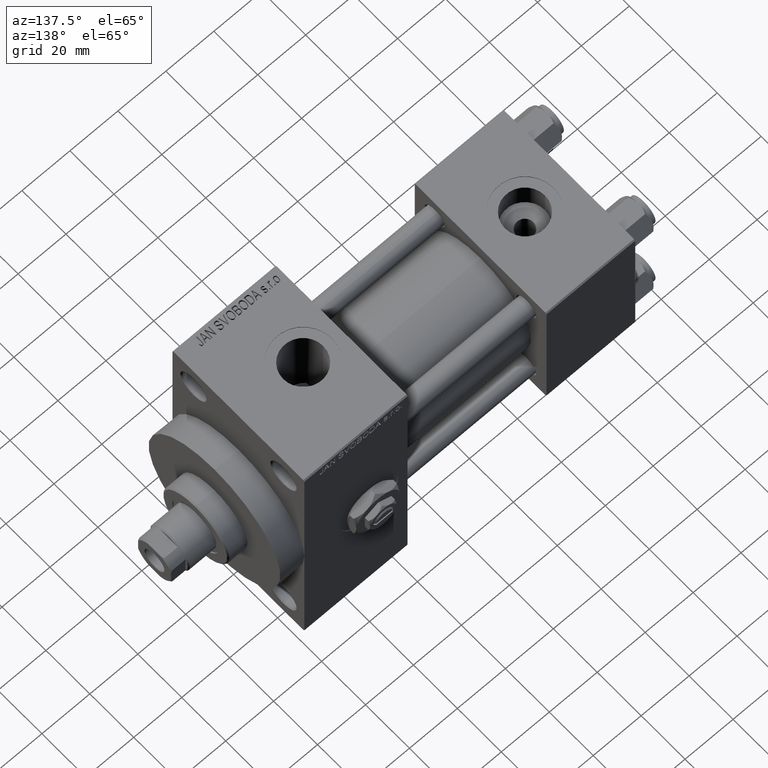
[diagram: clean part render]
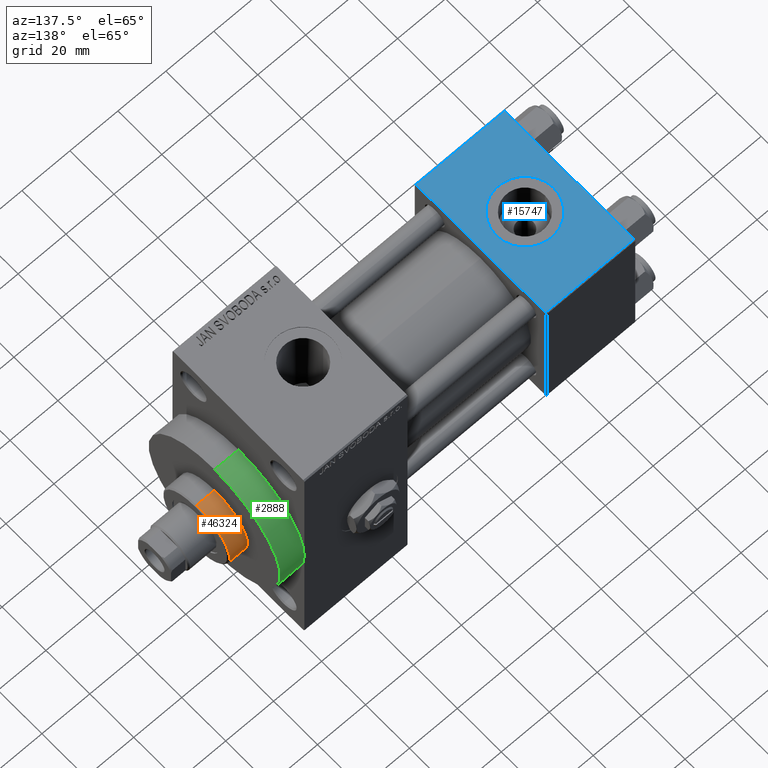
[diagram: same view with three faces highlighted in distinct colors, each labeled with its STEP entity id]
A machine part, auxiliary view with three faces highlighted in distinct colors.
Their STEP definitions:

[orange] entity #46324 — the highlighted cylindrical surface (partial cylindrical patch) has radius 15 mm, axis along (-1, 0, 0).
#242 = DIRECTION ( 'NONE',  ( -0.000000000000000000, -0.000000000000000000, -1.000000000000000000 ) ) ;
#704 = AXIS2_PLACEMENT_3D ( 'NONE', #12559, #23215, #38315 ) ;
#742 = EDGE_LOOP ( 'NONE', ( #26385, #35030, #11837, #17627 ) ) ;
#1371 = VERTEX_POINT ( 'NONE', #39934 ) ;
#2349 = FACE_OUTER_BOUND ( 'NONE', #742, .T. ) ;
#5882 = VERTEX_POINT ( 'NONE', #18214 ) ;
#6620 = VECTOR ( 'NONE', #21544, 1000.000000000000000 ) ;
#6797 = DIRECTION ( 'NONE',  ( -0.000000000000000000, -0.000000000000000000, -1.000000000000000000 ) ) ;
#10573 = CIRCLE ( 'NONE', #44573, 15.00000000000000000 ) ;
#11837 = ORIENTED_EDGE ( 'NONE', *, *, #20926, .T. ) ;
#12118 = VERTEX_POINT ( 'NONE', #23984 ) ;
#12559 = CARTESIAN_POINT ( 'NONE',  ( 0.000000000000000000, 0.000000000000000000, 43.25999999999999801 ) ) ;
#14215 = DIRECTION ( 'NONE',  ( -1.000000000000000000, 0.000000000000000000, 0.000000000000000000 ) ) ;
#16130 = CARTESIAN_POINT ( 'NONE',  ( 0.000000000000000000, 0.000000000000000000, 50.75999999999998380 ) ) ;
#16704 = VERTEX_POINT ( 'NONE', #18501 ) ;
#17340 = LINE ( 'NONE', #47522, #6620 ) ;
#17627 = ORIENTED_EDGE ( 'NONE', *, *, #36273, .T. ) ;
#18214 = CARTESIAN_POINT ( 'NONE',  ( -15.00000000000000000, 0.000000000000000000, 43.25999999999999801 ) ) ;
#18501 = CARTESIAN_POINT ( 'NONE',  ( 15.00000000000000000, 1.836970198721029589E-15, 43.25999999999999801 ) ) ;
#20926 = EDGE_CURVE ( 'NONE', #12118, #5882, #17340, .T. ) ;
#21544 = DIRECTION ( 'NONE',  ( -0.000000000000000000, -0.000000000000000000, -1.000000000000000000 ) ) ;
#23029 = LINE ( 'NONE', #38115, #35728 ) ;
#23215 = DIRECTION ( 'NONE',  ( 0.000000000000000000, 0.000000000000000000, 1.000000000000000000 ) ) ;
#23984 = CARTESIAN_POINT ( 'NONE',  ( -15.00000000000000000, 0.000000000000000000, 50.75999999999998380 ) ) ;
#24162 = EDGE_CURVE ( 'NONE', #1371, #12118, #10573, .T. ) ;
#26385 = ORIENTED_EDGE ( 'NONE', *, *, #43192, .F. ) ;
#28370 = CIRCLE ( 'NONE', #704, 15.00000000000000000 ) ;
#31215 = DIRECTION ( 'NONE',  ( 0.000000000000000000, 0.000000000000000000, -1.000000000000000000 ) ) ;
#35030 = ORIENTED_EDGE ( 'NONE', *, *, #24162, .T. ) ;
#35728 = VECTOR ( 'NONE', #242, 1000.000000000000000 ) ;
#36273 = EDGE_CURVE ( 'NONE', #5882, #16704, #28370, .T. ) ;
#36501 = CYLINDRICAL_SURFACE ( 'NONE', #39801, 15.00000000000000000 ) ;
#38115 = CARTESIAN_POINT ( 'NONE',  ( 15.00000000000000000, 1.836970198721029589E-15, 51.25999999999999801 ) ) ;
#38315 = DIRECTION ( 'NONE',  ( 1.000000000000000000, 0.000000000000000000, 0.000000000000000000 ) ) ;
#39801 = AXIS2_PLACEMENT_3D ( 'NONE', #44186, #6797, #14215 ) ;
#39934 = CARTESIAN_POINT ( 'NONE',  ( 15.00000000000000000, 1.836970198721029589E-15, 50.75999999999998380 ) ) ;
#43192 = EDGE_CURVE ( 'NONE', #1371, #16704, #23029, .T. ) ;
#44186 = CARTESIAN_POINT ( 'NONE',  ( 0.000000000000000000, 0.000000000000000000, 51.25999999999999801 ) ) ;
#44573 = AXIS2_PLACEMENT_3D ( 'NONE', #16130, #31215, #46326 ) ;
#46324 = ADVANCED_FACE ( 'NONE', ( #2349 ), #36501, .T. ) ;
#46326 = DIRECTION ( 'NONE',  ( 1.000000000000000000, 0.000000000000000000, 0.000000000000000000 ) ) ;
#47522 = CARTESIAN_POINT ( 'NONE',  ( -15.00000000000000000, 0.000000000000000000, 51.25999999999999801 ) ) ;

[blue] entity #15747 — the highlighted planar face has unit normal (0, 0, -1).
#57 = VERTEX_POINT ( 'NONE', #39738 ) ;
#248 = CARTESIAN_POINT ( 'NONE',  ( 37.00000000000000000, 29.49999999999999289, 30.00000000000000000 ) ) ;
#737 = DIRECTION ( 'NONE',  ( 1.000000000000000000, 0.000000000000000000, 0.000000000000000000 ) ) ;
#974 = DIRECTION ( 'NONE',  ( 0.000000000000000000, 0.000000000000000000, 1.000000000000000000 ) ) ;
#1301 = ORIENTED_EDGE ( 'NONE', *, *, #24977, .T. ) ;
#2118 = CARTESIAN_POINT ( 'NONE',  ( 37.00000000000000000, 29.99999999999999289, 30.00000000000000000 ) ) ;
#2928 = LINE ( 'NONE', #21287, #31142 ) ;
#3141 = VERTEX_POINT ( 'NONE', #22308 ) ;
#7362 = EDGE_CURVE ( 'NONE', #14644, #3141, #33952, .T. ) ;
#7483 = VERTEX_POINT ( 'NONE', #13633 ) ;
#9547 = FACE_OUTER_BOUND ( 'NONE', #19577, .T. ) ;
#10044 = EDGE_CURVE ( 'NONE', #7483, #28287, #48136, .T. ) ;
#13633 = CARTESIAN_POINT ( 'NONE',  ( 6.499999999999997335, -1.999870792976790833E-15, 29.99999999999999645 ) ) ;
#14644 = VERTEX_POINT ( 'NONE', #19894 ) ;
#15747 = ADVANCED_FACE ( 'NONE', ( #24406, #9547 ), #39507, .F. ) ;
#16237 = ORIENTED_EDGE ( 'NONE', *, *, #10044, .F. ) ;
#19577 = EDGE_LOOP ( 'NONE', ( #1301, #31585, #41871, #27345 ) ) ;
#19893 = CARTESIAN_POINT ( 'NONE',  ( 0.000000000000000000, 29.49999999999999289, 30.00000000000000000 ) ) ;
#19894 = CARTESIAN_POINT ( 'NONE',  ( 0.000000000000000000, -29.49999999999998579, 29.99999999999999289 ) ) ;
#19900 = AXIS2_PLACEMENT_3D ( 'NONE', #2118, #32311, #47413 ) ;
#20535 = CARTESIAN_POINT ( 'NONE',  ( 18.50000000000000000, -3.469446951953614978E-15, 29.99999999999999645 ) ) ;
#21287 = CARTESIAN_POINT ( 'NONE',  ( 0.000000000000000000, 29.99999999999999289, 30.00000000000000000 ) ) ;
#21823 = CARTESIAN_POINT ( 'NONE',  ( 37.00000000000000000, 29.99999999999999289, 30.00000000000000000 ) ) ;
#21997 = CARTESIAN_POINT ( 'NONE',  ( 18.50000000000000000, -3.469446951953614978E-15, 29.99999999999999645 ) ) ;
#22308 = CARTESIAN_POINT ( 'NONE',  ( 37.00000000000000000, -29.49999999999998579, 29.99999999999999289 ) ) ;
#22539 = VECTOR ( 'NONE', #30730, 1000.000000000000000 ) ;
#24406 = FACE_BOUND ( 'NONE', #43397, .T. ) ;
#24678 = VECTOR ( 'NONE', #30530, 1000.000000000000000 ) ;
#24977 = EDGE_CURVE ( 'NONE', #57, #14644, #2928, .T. ) ;
#27110 = CARTESIAN_POINT ( 'NONE',  ( 30.50000000000000000, -3.469446951953614978E-15, 29.99999999999999645 ) ) ;
#27345 = ORIENTED_EDGE ( 'NONE', *, *, #40171, .T. ) ;
#28287 = VERTEX_POINT ( 'NONE', #27110 ) ;
#28700 = CIRCLE ( 'NONE', #46084, 12.00000000000000000 ) ;
#30530 = DIRECTION ( 'NONE',  ( -1.000000000000000000, 0.000000000000000000, 0.000000000000000000 ) ) ;
#30730 = DIRECTION ( 'NONE',  ( 1.000000000000000000, 0.000000000000000000, 0.000000000000000000 ) ) ;
#31142 = VECTOR ( 'NONE', #44518, 1000.000000000000000 ) ;
#31505 = EDGE_CURVE ( 'NONE', #31670, #3141, #44586, .T. ) ;
#31585 = ORIENTED_EDGE ( 'NONE', *, *, #7362, .T. ) ;
#31670 = VERTEX_POINT ( 'NONE', #248 ) ;
#32311 = DIRECTION ( 'NONE',  ( 0.000000000000000000, 1.156482317317871725E-16, -1.000000000000000000 ) ) ;
#33952 = LINE ( 'NONE', #48558, #22539 ) ;
#34721 = AXIS2_PLACEMENT_3D ( 'NONE', #21997, #44274, #44510 ) ;
#38461 = LINE ( 'NONE', #19893, #24678 ) ;
#39507 = PLANE ( 'NONE',  #19900 ) ;
#39568 = ORIENTED_EDGE ( 'NONE', *, *, #45132, .F. ) ;
#39738 = CARTESIAN_POINT ( 'NONE',  ( 0.000000000000000000, 29.49999999999999289, 30.00000000000000000 ) ) ;
#40171 = EDGE_CURVE ( 'NONE', #31670, #57, #38461, .T. ) ;
#41119 = DIRECTION ( 'NONE',  ( 0.000000000000000000, -1.000000000000000000, -1.156482317317871725E-16 ) ) ;
#41871 = ORIENTED_EDGE ( 'NONE', *, *, #31505, .F. ) ;
#42480 = VECTOR ( 'NONE', #41119, 1000.000000000000000 ) ;
#43397 = EDGE_LOOP ( 'NONE', ( #39568, #16237 ) ) ;
#44274 = DIRECTION ( 'NONE',  ( 0.000000000000000000, 0.000000000000000000, 1.000000000000000000 ) ) ;
#44510 = DIRECTION ( 'NONE',  ( 1.000000000000000000, 0.000000000000000000, 0.000000000000000000 ) ) ;
#44518 = DIRECTION ( 'NONE',  ( 0.000000000000000000, -1.000000000000000000, -1.156482317317871725E-16 ) ) ;
#44586 = LINE ( 'NONE', #21823, #42480 ) ;
#45132 = EDGE_CURVE ( 'NONE', #28287, #7483, #28700, .T. ) ;
#46084 = AXIS2_PLACEMENT_3D ( 'NONE', #20535, #974, #737 ) ;
#47413 = DIRECTION ( 'NONE',  ( 0.000000000000000000, 1.000000000000000000, 1.156482317317871725E-16 ) ) ;
#48136 = CIRCLE ( 'NONE', #34721, 12.00000000000000000 ) ;
#48558 = CARTESIAN_POINT ( 'NONE',  ( 37.00000000000000000, -29.50000000000000000, 29.99999999999999289 ) ) ;

[green] entity #2888 — the highlighted cylindrical surface (partial cylindrical patch) has radius 30 mm, axis along (-1, -0, -0).
#237 = VERTEX_POINT ( 'NONE', #34735 ) ;
#1841 = ORIENTED_EDGE ( 'NONE', *, *, #34193, .T. ) ;
#2888 = ADVANCED_FACE ( 'NONE', ( #15494 ), #23165, .T. ) ;
#2956 = LINE ( 'NONE', #25727, #35747 ) ;
#7801 = DIRECTION ( 'NONE',  ( 1.000000000000000000, 0.000000000000000000, 0.000000000000000000 ) ) ;
#7881 = VERTEX_POINT ( 'NONE', #36337 ) ;
#8916 = ORIENTED_EDGE ( 'NONE', *, *, #18059, .T. ) ;
#9311 = CARTESIAN_POINT ( 'NONE',  ( 148.0000000000000284, 0.000000000000000000, 30.00000000000000000 ) ) ;
#9574 = CARTESIAN_POINT ( 'NONE',  ( 138.0000000000000000, 0.000000000000000000, 0.000000000000000000 ) ) ;
#12113 = CIRCLE ( 'NONE', #25524, 30.00000000000000000 ) ;
#12777 = EDGE_CURVE ( 'NONE', #42287, #237, #14474, .T. ) ;
#13248 = ORIENTED_EDGE ( 'NONE', *, *, #12777, .T. ) ;
#14138 = EDGE_LOOP ( 'NONE', ( #35833, #13248, #1841, #8916, #28192 ) ) ;
#14248 = DIRECTION ( 'NONE',  ( 1.000000000000000000, 0.000000000000000000, 0.000000000000000000 ) ) ;
#14474 = LINE ( 'NONE', #29571, #18222 ) ;
#14888 = CIRCLE ( 'NONE', #48059, 30.00000000000000000 ) ;
#15494 = FACE_OUTER_BOUND ( 'NONE', #14138, .T. ) ;
#16012 = EDGE_CURVE ( 'NONE', #18781, #7881, #2956, .T. ) ;
#17185 = CARTESIAN_POINT ( 'NONE',  ( 138.0000000000000000, 0.000000000000000000, 0.000000000000000000 ) ) ;
#18059 = EDGE_CURVE ( 'NONE', #19457, #7881, #12113, .T. ) ;
#18222 = VECTOR ( 'NONE', #48622, 1000.000000000000000 ) ;
#18781 = VERTEX_POINT ( 'NONE', #9311 ) ;
#19457 = VERTEX_POINT ( 'NONE', #20447 ) ;
#20447 = CARTESIAN_POINT ( 'NONE',  ( 138.0000000000000000, 30.00000000000000000, 0.000000000000000000 ) ) ;
#22899 = DIRECTION ( 'NONE',  ( 0.000000000000000000, 0.000000000000000000, -1.000000000000000000 ) ) ;
#23165 = CYLINDRICAL_SURFACE ( 'NONE', #26424, 30.00000000000000000 ) ;
#25318 = DIRECTION ( 'NONE',  ( 0.000000000000000000, 0.000000000000000000, -1.000000000000000000 ) ) ;
#25524 = AXIS2_PLACEMENT_3D ( 'NONE', #17185, #43431, #25318 ) ;
#25727 = CARTESIAN_POINT ( 'NONE',  ( 148.0000000000000284, 0.000000000000000000, 30.00000000000000000 ) ) ;
#25800 = CIRCLE ( 'NONE', #37645, 30.00000000000000000 ) ;
#26424 = AXIS2_PLACEMENT_3D ( 'NONE', #30582, #45691, #46840 ) ;
#28192 = ORIENTED_EDGE ( 'NONE', *, *, #16012, .F. ) ;
#29571 = CARTESIAN_POINT ( 'NONE',  ( 148.0000000000000284, 3.673940397442059178E-15, -30.00000000000000000 ) ) ;
#30101 = EDGE_CURVE ( 'NONE', #42287, #18781, #25800, .T. ) ;
#30582 = CARTESIAN_POINT ( 'NONE',  ( 148.0000000000000284, 0.000000000000000000, 0.000000000000000000 ) ) ;
#34193 = EDGE_CURVE ( 'NONE', #237, #19457, #14888, .T. ) ;
#34735 = CARTESIAN_POINT ( 'NONE',  ( 138.0000000000000000, 3.673940397442059178E-15, -30.00000000000000000 ) ) ;
#35006 = CARTESIAN_POINT ( 'NONE',  ( 148.0000000000000284, 0.000000000000000000, 0.000000000000000000 ) ) ;
#35747 = VECTOR ( 'NONE', #48243, 1000.000000000000000 ) ;
#35833 = ORIENTED_EDGE ( 'NONE', *, *, #30101, .F. ) ;
#36337 = CARTESIAN_POINT ( 'NONE',  ( 138.0000000000000000, 0.000000000000000000, 30.00000000000000000 ) ) ;
#36530 = DIRECTION ( 'NONE',  ( 0.000000000000000000, 0.000000000000000000, -1.000000000000000000 ) ) ;
#37645 = AXIS2_PLACEMENT_3D ( 'NONE', #35006, #7801, #22899 ) ;
#39043 = CARTESIAN_POINT ( 'NONE',  ( 148.0000000000000284, 3.673940397442059178E-15, -30.00000000000000000 ) ) ;
#42287 = VERTEX_POINT ( 'NONE', #39043 ) ;
#43431 = DIRECTION ( 'NONE',  ( 1.000000000000000000, 0.000000000000000000, 0.000000000000000000 ) ) ;
#45691 = DIRECTION ( 'NONE',  ( -1.000000000000000000, -0.000000000000000000, -0.000000000000000000 ) ) ;
#46840 = DIRECTION ( 'NONE',  ( 0.000000000000000000, 0.000000000000000000, 1.000000000000000000 ) ) ;
#48059 = AXIS2_PLACEMENT_3D ( 'NONE', #9574, #14248, #36530 ) ;
#48243 = DIRECTION ( 'NONE',  ( -1.000000000000000000, -0.000000000000000000, -0.000000000000000000 ) ) ;
#48622 = DIRECTION ( 'NONE',  ( -1.000000000000000000, -0.000000000000000000, -0.000000000000000000 ) ) ;